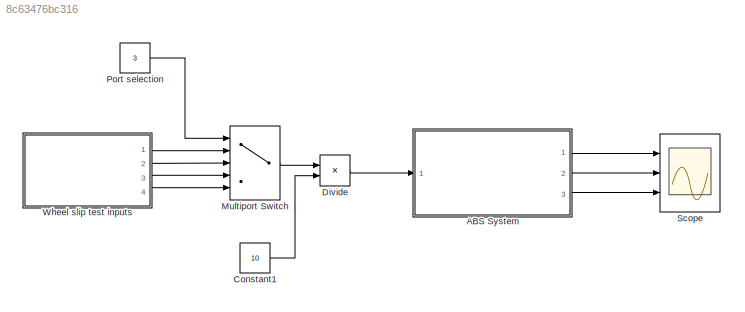
MODEL slx_8c63476bc316
KIND model
CONFIG AbsTol = auto
CONFIG EnableMultiTasking = off
CONFIG FixedStep = auto
CONFIG MaxStep = auto
CONFIG MinStep = auto
CONFIG RelTol = 1e-3
CONFIG SampleTimeConstraint = Unconstrained
CONFIG SolverName = VariableStepAuto
CONFIG StartTime = 0.0
CONFIG StopTime = 10.0
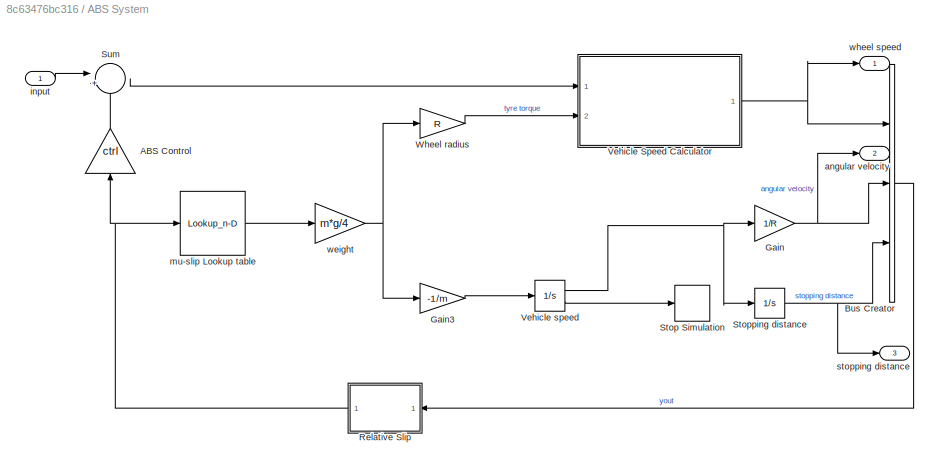
BLOCK [SubSystem] ABS System
  Ports = [1, 3]
  RequestExecContextInheritance = off
BLOCK [Gain] ABS System/ABS Control
  Gain = ctrl
  NameLocation = right
BLOCK [BusCreator] ABS System/Bus Creator
  DisplayOption = bar
  InheritFromInputs = on
  Inputs = 3
  Ports = [3, 1]
BLOCK [Gain] ABS System/Gain
  Gain = 1/R
BLOCK [Gain] ABS System/Gain3
  Gain = -1/m
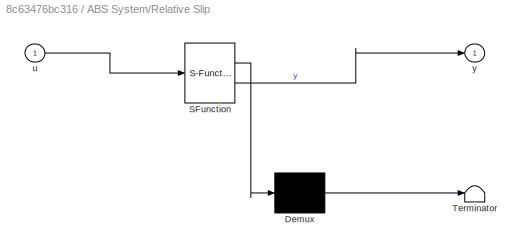
BLOCK [SubSystem] ABS System/Relative Slip
  ErrorFcn = Stateflow.Translate.translate
  NameLocation = top
  PermitHierarchicalResolution = ExplicitOnly
  Ports = [1, 1]
  RequestExecContextInheritance = off
  SFBlockType = MATLAB Function
  TreatAsAtomicUnit = on
BLOCK [Demux] ABS System/Relative Slip/ Demux 
  Outputs = 1
  Ports = [1, 1]
BLOCK [S-Function] ABS System/Relative Slip/ SFunction 
  EnableBusSupport = on
  FunctionName = sf_sfun
  PortCounts = [1 2]
  Ports = [1, 2]
  SFcnIsStateOwnerBlock = off
  SFunctionDeploymentMode = off
  Tag = Stateflow S-Function 2
BLOCK [Terminator] ABS System/Relative Slip/ Terminator 
BLOCK [Inport] ABS System/Relative Slip/u
BLOCK [Outport] ABS System/Relative Slip/y
BLOCK [Stop] ABS System/Stop Simulation
BLOCK [Integrator] ABS System/Stopping distance
  Ports = [1, 1]
BLOCK [Sum] ABS System/Sum
  Inputs = |+-
  Ports = [2, 1]
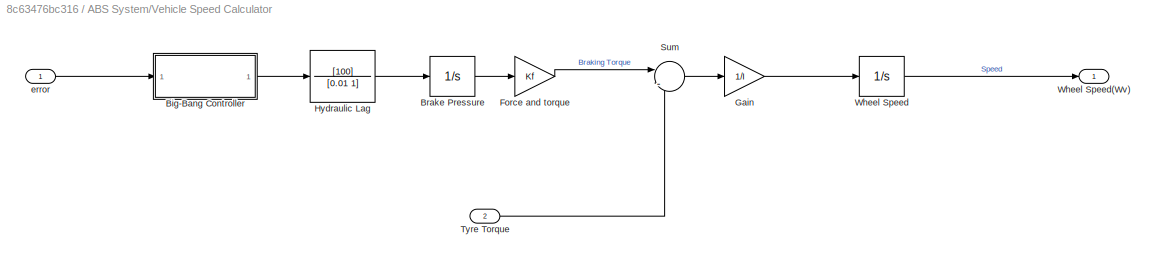
BLOCK [SubSystem] ABS System/Vehicle Speed Calculator
  Ports = [2, 1]
  RequestExecContextInheritance = off
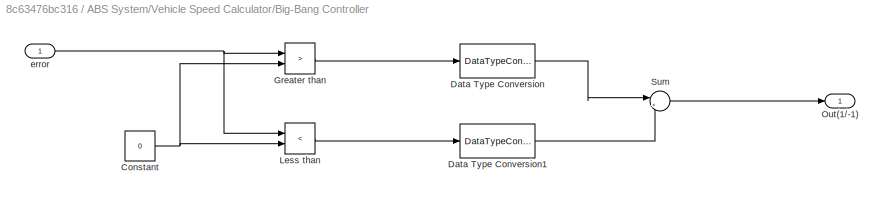
BLOCK [SubSystem] ABS System/Vehicle Speed Calculator/Big-Bang Controller
  Ports = [1, 1]
  RequestExecContextInheritance = off
BLOCK [Constant] ABS System/Vehicle Speed Calculator/Big-Bang Controller/Constant
  Value = 0
BLOCK [DataTypeConversion] ABS System/Vehicle Speed Calculator/Big-Bang Controller/Data Type Conversion
  OutDataTypeStr = double
  RndMeth = Floor
  SaturateOnIntegerOverflow = off
BLOCK [DataTypeConversion] ABS System/Vehicle Speed Calculator/Big-Bang Controller/Data Type Conversion1
  OutDataTypeStr = double
  RndMeth = Floor
  SaturateOnIntegerOverflow = off
BLOCK [RelationalOperator] ABS System/Vehicle Speed Calculator/Big-Bang Controller/Greater than
  InputSameDT = off
  Operator = >
  OutDataTypeStr = boolean
  Ports = [2, 1]
  RndMeth = Simplest
BLOCK [RelationalOperator] ABS System/Vehicle Speed Calculator/Big-Bang Controller/Less than
  InputSameDT = off
  Operator = <
  OutDataTypeStr = boolean
  Ports = [2, 1]
  RndMeth = Simplest
BLOCK [Outport] ABS System/Vehicle Speed Calculator/Big-Bang Controller/Out(1//-1)
BLOCK [Sum] ABS System/Vehicle Speed Calculator/Big-Bang Controller/Sum
  Inputs = |+-
  Ports = [2, 1]
BLOCK [Inport] ABS System/Vehicle Speed Calculator/Big-Bang Controller/error
BLOCK [Integrator] ABS System/Vehicle Speed Calculator/Brake Pressure
  LimitOutput = on
  LowerSaturationLimit = 0
  Ports = [1, 1]
  UpperSaturationLimit = 1000
BLOCK [Gain] ABS System/Vehicle Speed Calculator/Force and torque
  Gain = Kf
BLOCK [Gain] ABS System/Vehicle Speed Calculator/Gain
  Gain = 1/I
BLOCK [TransferFcn] ABS System/Vehicle Speed Calculator/Hydraulic Lag
  Denominator = [0.01 1]
  Numerator = [100]
BLOCK [Sum] ABS System/Vehicle Speed Calculator/Sum
  Inputs = |-+
  Ports = [2, 1]
BLOCK [Inport] ABS System/Vehicle Speed Calculator/Tyre Torque
  Port = 2
BLOCK [Integrator] ABS System/Vehicle Speed Calculator/Wheel Speed
  InitialCondition = v0/R
  LimitOutput = on
  LowerSaturationLimit = 0
  Ports = [1, 1]
  UpperSaturationLimit = 1000
BLOCK [Outport] ABS System/Vehicle Speed Calculator/Wheel Speed(Wv)
BLOCK [Inport] ABS System/Vehicle Speed Calculator/error
BLOCK [Integrator] ABS System/Vehicle speed
  InitialCondition = v0
  LimitOutput = on
  LowerSaturationLimit = 0
  Ports = [1, 2]
  ShowSaturationPort = on
  UpperSaturationLimit = 1000
BLOCK [Gain] ABS System/Wheel radius
  Gain = R
BLOCK [Outport] ABS System/angular velocity
  Port = 2
BLOCK [Inport] ABS System/input
BLOCK [Lookup_n-D] ABS System/mu-slip Lookup table
  BreakpointsForDimension1 = [0\n0.05\n0.1\n0.15\n0.2\n0.25\n0.3\n0.35\n0.4\n0.45\n0.5\n0.55\n0.6\n0.65\n0.7\n0.75\n0.8\n0.85\n0.9\n0.95\n1\n]
  InputPortMap = u0
  InternalRulePriority = Speed
  NumberOfTableDimensions = 1
  Ports = [1, 1]
  RndMeth = Simplest
  Table = [0\n0.4\n0.8\n0.97\n1\n0.98\n0.96\n0.94\n0.92\n0.9\n0.88\n0.855\n0.83\n0.81\n0.79\n0.77\n0.75\n0.73\n0.72\n0.71\n0.7\n]
BLOCK [Outport] ABS System/stopping distance
  Port = 3
BLOCK [Gain] ABS System/weight
  Gain = m*g/4
BLOCK [Outport] ABS System/wheel speed
BLOCK [Constant] Constant1
  Value = 10
BLOCK [Product] Divide
  Inputs = */
  Ports = [2, 1]
BLOCK [MultiPortSwitch] Multiport Switch
  InputSameDT = off
  Inputs = 4
  Ports = [5, 1]
  SaturateOnIntegerOverflow = off
BLOCK [Constant] Port selection
  Value = 3
BLOCK [Scope] Scope
  Floating = off
  NumInputPorts = 3
  Ports = [3]
  ScopeSpecificationString = Simulink.scopes.TimeScopeBlockCfg('CurrentConfiguration', extmgr.ConfigurationSet(extmgr.Configuration('Core','General UI',true),extmgr.Configuration('Core','Source UI',true),extmgr.Configuration('Sources','WiredSimulink',true),extmgr.Configuration('Visuals','Time Domain',true,'SerializedDisplays',{struct('MinYLimReal','-4.4','MaxYLimReal','39.6','YLabelReal','','MinYLimMag','0.00000','MaxYLimMag'...<+2731ch>
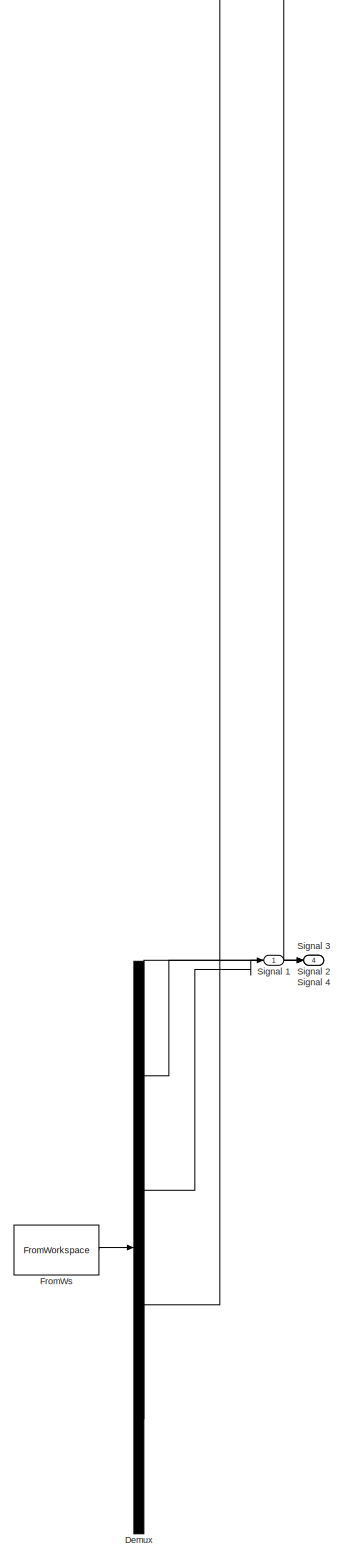
[diagram: Wheel slip test inputs - part 1/1, full width, bottom band]
BLOCK [SubSystem] Wheel slip test inputs
  ClipboardFcn = sigbuilder_block('clipboard');
  CloseFcn = sigbuilder_block('close');
  ContinueFcn = sigbuilder_block('continue');
  CopyFcn = sigbuilder_block('copy');
  DeleteFcn = sigbuilder_block('delete');
  LoadFcn = sigbuilder_block('load');
  MaskHideContents = on
  ModelCloseFcn = sigbuilder_block('modelClose');
  NameChangeFcn = sigbuilder_block('namechange');
  OpenFcn = sigbuilder_block('open',[345 150 550.5 359.25 ]);
  PauseFcn = sigbuilder_block('pause');
  Ports = [0, 4]
  PreSaveFcn = sigbuilder_block('preSave');
  RequestExecContextInheritance = off
  StartFcn = sigbuilder_block('start');
  StopFcn = sigbuilder_block('stop');
  Tag = STV Subsys
BLOCK [Demux] Wheel slip test inputs/Demux
  DisplayOption = none
  Ports = [1, 4]
  Tag = STV Demux
BLOCK [FromWorkspace] Wheel slip test inputs/FromWs
  Tag = STV FromWs
  VariableName = tuvar
BLOCK [Outport] Wheel slip test inputs/Signal 1
  Tag = STV Outport
BLOCK [Outport] Wheel slip test inputs/Signal 2
  Port = 2
  Tag = STV Outport
BLOCK [Outport] Wheel slip test inputs/Signal 3
  Port = 3
  Tag = STV Outport
BLOCK [Outport] Wheel slip test inputs/Signal 4
  Port = 4
  Tag = STV Outport
LINE ABS System/ABS Control:1 -> ABS System/Sum:2
LINE ABS System/Bus Creator:1 -> ABS System/Relative Slip:1
LINE ABS System/Gain3:1 -> ABS System/Vehicle speed:1
NET ABS System/Gain:1 -> ABS System/Bus Creator:2, ABS System/angular velocity:1
NET ABS System/Relative Slip:1 -> ABS System/ABS Control:1, ABS System/mu-slip Lookup table:1
NET ABS System/Stopping distance:1 -> ABS System/Bus Creator:3, ABS System/stopping distance:1
LINE ABS System/Sum:1 -> ABS System/Vehicle Speed Calculator:1
NET ABS System/Vehicle Speed Calculator/Big-Bang Controller/Constant:1 -> ABS System/Vehicle Speed Calculator/Big-Bang Controller/Greater than:2, ABS System/Vehicle Speed Calculator/Big-Bang Controller/Less than:2
LINE ABS System/Vehicle Speed Calculator/Big-Bang Controller/Data Type Conversion1:1 -> ABS System/Vehicle Speed Calculator/Big-Bang Controller/Sum:2
LINE ABS System/Vehicle Speed Calculator/Big-Bang Controller/Data Type Conversion:1 -> ABS System/Vehicle Speed Calculator/Big-Bang Controller/Sum:1
LINE ABS System/Vehicle Speed Calculator/Big-Bang Controller/Greater than:1 -> ABS System/Vehicle Speed Calculator/Big-Bang Controller/Data Type Conversion:1
LINE ABS System/Vehicle Speed Calculator/Big-Bang Controller/Less than:1 -> ABS System/Vehicle Speed Calculator/Big-Bang Controller/Data Type Conversion1:1
LINE ABS System/Vehicle Speed Calculator/Big-Bang Controller/Sum:1 -> ABS System/Vehicle Speed Calculator/Big-Bang Controller/Out(1//-1):1
NET ABS System/Vehicle Speed Calculator/Big-Bang Controller/error:1 -> ABS System/Vehicle Speed Calculator/Big-Bang Controller/Greater than:1, ABS System/Vehicle Speed Calculator/Big-Bang Controller/Less than:1
LINE ABS System/Vehicle Speed Calculator/Big-Bang Controller:1 -> ABS System/Vehicle Speed Calculator/Hydraulic Lag:1
LINE ABS System/Vehicle Speed Calculator/Brake Pressure:1 -> ABS System/Vehicle Speed Calculator/Force and torque:1
LINE ABS System/Vehicle Speed Calculator/Force and torque:1 -> ABS System/Vehicle Speed Calculator/Sum:1
LINE ABS System/Vehicle Speed Calculator/Gain:1 -> ABS System/Vehicle Speed Calculator/Wheel Speed:1
LINE ABS System/Vehicle Speed Calculator/Hydraulic Lag:1 -> ABS System/Vehicle Speed Calculator/Brake Pressure:1
LINE ABS System/Vehicle Speed Calculator/Sum:1 -> ABS System/Vehicle Speed Calculator/Gain:1
LINE ABS System/Vehicle Speed Calculator/Tyre Torque:1 -> ABS System/Vehicle Speed Calculator/Sum:2
LINE ABS System/Vehicle Speed Calculator/Wheel Speed:1 -> ABS System/Vehicle Speed Calculator/Wheel Speed(Wv):1
LINE ABS System/Vehicle Speed Calculator/error:1 -> ABS System/Vehicle Speed Calculator/Big-Bang Controller:1
NET ABS System/Vehicle Speed Calculator:1 -> ABS System/Bus Creator:1, ABS System/wheel speed:1
NET ABS System/Vehicle speed:1 -> ABS System/Gain:1, ABS System/Stopping distance:1
LINE ABS System/Vehicle speed:2 -> ABS System/Stop Simulation:1
LINE ABS System/Wheel radius:1 -> ABS System/Vehicle Speed Calculator:2
LINE ABS System/input:1 -> ABS System/Sum:1
LINE ABS System/mu-slip Lookup table:1 -> ABS System/weight:1
NET ABS System/weight:1 -> ABS System/Gain3:1, ABS System/Wheel radius:1
LINE ABS System:1 -> Scope:1
LINE ABS System:2 -> Scope:2
LINE ABS System:3 -> Scope:3
LINE Constant1:1 -> Divide:2
LINE Divide:1 -> ABS System:1
LINE Multiport Switch:1 -> Divide:1
LINE Port selection:1 -> Multiport Switch:1
LINE Wheel slip test inputs:1 -> Multiport Switch:2
LINE Wheel slip test inputs:2 -> Multiport Switch:3
LINE Wheel slip test inputs:3 -> Multiport Switch:4
LINE Wheel slip test inputs:4 -> Multiport Switch:5
note: NET lines group one-source signal fan-out (src -> all destinations, sorted); 1:1 wires keep LINE
CHART ABS System/Relative Slip states=1 transitions=1
  STATE_LABEL 'eML_blk_kernel()'
  STATE_LABEL 'SCRIPT:\nfunction y = fcn(u)\n\ny = 1.0 - u(1)/(u(2) + (u(2)==0)*eps);\n'
CHART  states=0 transitions=0
